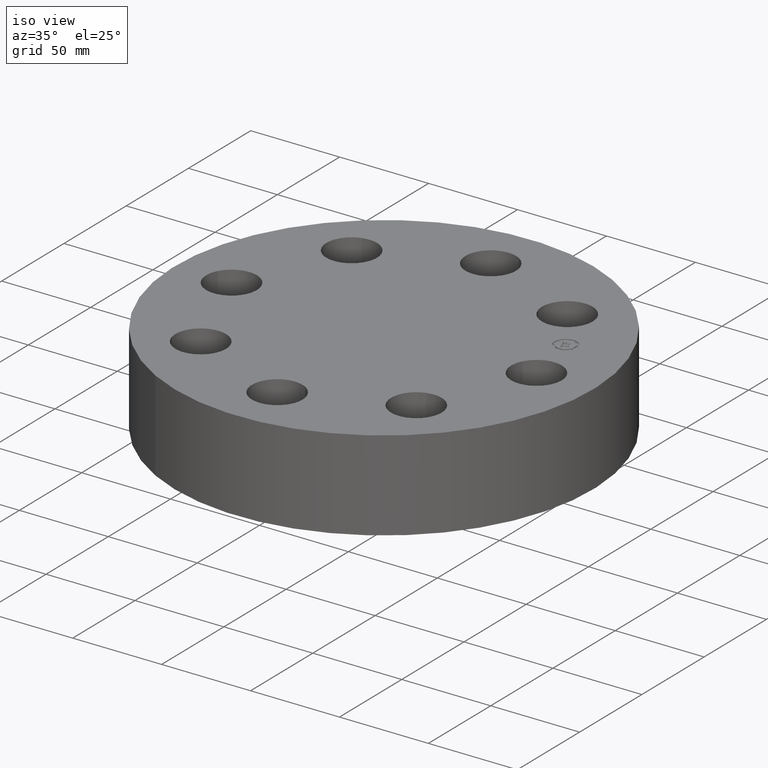
[diagram: clean part render]
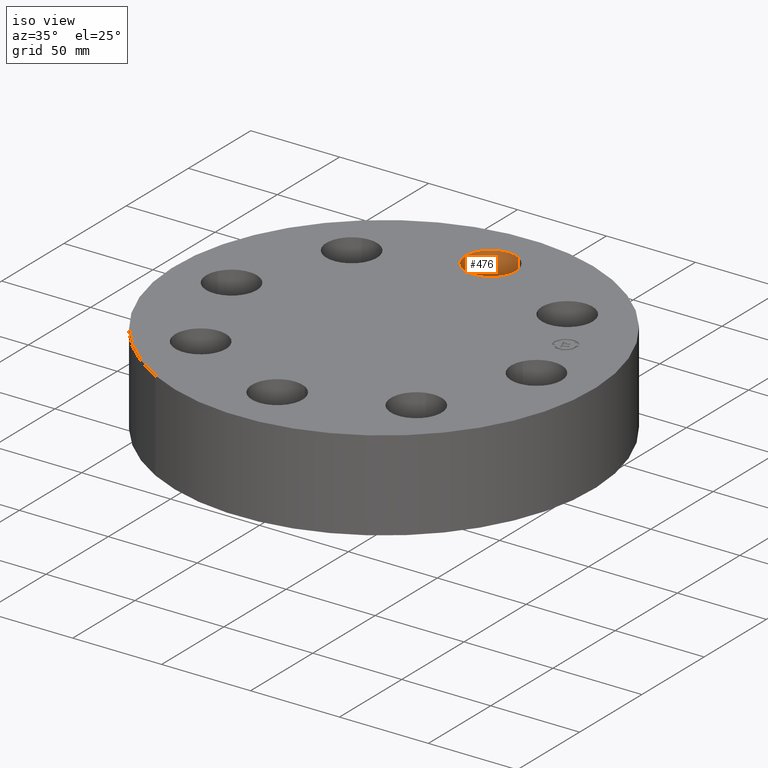
[diagram: same view with one face highlighted and labeled with its STEP entity id]
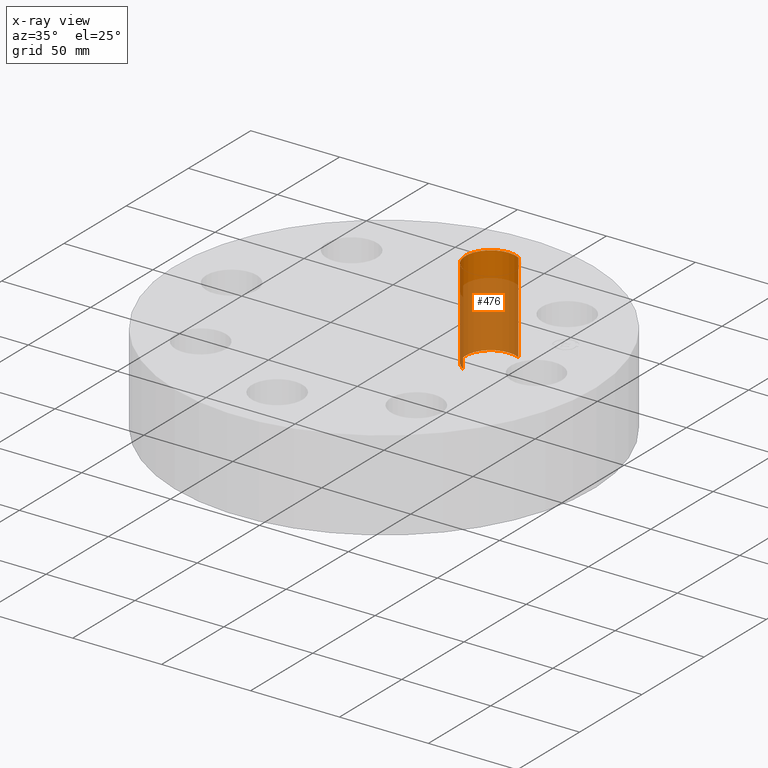
[diagram: x-ray of the same camera — body ghosted, the highlighted face saturated]
A machine part, iso view. The second image highlights one B-rep face of the part: STEP entity #476.
The next image is the same camera in x-ray: the body ghosted, the highlighted face saturated — about 72% of this face is hidden behind the body in this view.
In plain terms, the highlighted cylindrical surface (edge-blend (fillet) strip) has radius 14.224 mm, axis along (0, 0, -1).
Its self-contained STEP definition (entity closure, byte-faithful):
#325=AXIS2_PLACEMENT_3D('Circle Axis2P3D',#323,#324,$) ;
#449=AXIS2_PLACEMENT_3D('Cylinder Axis2P3D',#446,#447,#448) ;
#467=AXIS2_PLACEMENT_3D('Circle Axis2P3D',#465,#466,$) ;
#323=CARTESIAN_POINT('Axis2P3D Location',(-7.69288395016E-016,3.37500000001,0.)) ;
#327=CARTESIAN_POINT('Vertex',(-0.268478301619,2.88355376535,0.)) ;
#329=CARTESIAN_POINT('Vertex',(0.268478301619,3.86644623467,0.)) ;
#446=CARTESIAN_POINT('Axis2P3D Location',(-6.19977442071E-016,3.37500000001,1.99606299213)) ;
#451=CARTESIAN_POINT('Line Origine',(-0.268478301619,2.88355376535,1.)) ;
#455=CARTESIAN_POINT('Vertex',(-0.268478301619,2.88355376535,2.00000000001)) ;
#458=CARTESIAN_POINT('Line Origine',(0.268478301619,3.86644623467,1.)) ;
#462=CARTESIAN_POINT('Vertex',(0.268478301619,3.86644623467,2.00000000001)) ;
#465=CARTESIAN_POINT('Axis2P3D Location',(-6.19977442071E-016,3.37500000001,2.00000000001)) ;
#324=DIRECTION('Axis2P3D Direction',(0.,0.,-0.0393700787402)) ;
#447=DIRECTION('Axis2P3D Direction',(0.,0.,-0.0393700787402)) ;
#448=DIRECTION('Axis2P3D XDirection',(0.0188750212049,0.0345504945626,0.)) ;
#452=DIRECTION('Vector Direction',(0.,0.,-0.0393700787402)) ;
#459=DIRECTION('Vector Direction',(0.,0.,-0.0393700787402)) ;
#466=DIRECTION('Axis2P3D Direction',(0.,0.,-0.0393700787402)) ;
#453=VECTOR('Line Direction',#452,0.0393700787402) ;
#460=VECTOR('Line Direction',#459,0.0393700787402) ;
#471=ORIENTED_EDGE('',*,*,#457,.F.) ;
#472=ORIENTED_EDGE('',*,*,#331,.T.) ;
#473=ORIENTED_EDGE('',*,*,#464,.T.) ;
#474=ORIENTED_EDGE('',*,*,#469,.F.) ;
#476=ADVANCED_FACE('PartBody',(#475),#450,.F.) ;
#326=CIRCLE('generated circle',#325,0.560000000002) ;
#468=CIRCLE('generated circle',#467,0.560000000002) ;
#450=CYLINDRICAL_SURFACE('generated cylinder',#449,0.560000000002) ;
#331=EDGE_CURVE('',#328,#330,#326,.T.) ;
#457=EDGE_CURVE('',#328,#456,#454,.F.) ;
#464=EDGE_CURVE('',#330,#463,#461,.F.) ;
#469=EDGE_CURVE('',#456,#463,#468,.T.) ;
#470=EDGE_LOOP('',(#471,#472,#473,#474)) ;
#475=FACE_OUTER_BOUND('',#470,.T.) ;
#454=LINE('Line',#451,#453) ;
#461=LINE('Line',#458,#460) ;
#328=VERTEX_POINT('',#327) ;
#330=VERTEX_POINT('',#329) ;
#456=VERTEX_POINT('',#455) ;
#463=VERTEX_POINT('',#462) ;